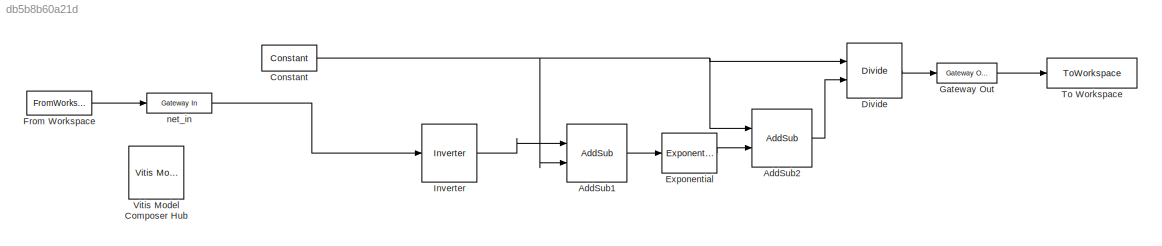
MODEL slx_db5b8b60a21d
KIND model
CONFIG AbsTol = auto
CONFIG EnableMultiTasking = off
CONFIG FixedStep = auto
CONFIG MaxStep = auto
CONFIG MinStep = auto
CONFIG RelTol = 1e-3
CONFIG SampleTimeConstraint = Unconstrained
CONFIG SolverName = VariableStepAuto
CONFIG StartTime = 0.0
CONFIG StopTime = 10.0
BLOCK [Reference] AddSub1  REF=hdlBasic/AddSub
  Ports = [2, 1]
  SourceBlock = hdlBasic/AddSub
  SourceType = Adder/Subtracter Block
BLOCK [Reference] AddSub2  REF=hdlBasic/AddSub
  Ports = [2, 1]
  SourceBlock = hdlBasic/AddSub
  SourceType = Adder/Subtracter Block
BLOCK [Reference] Constant  REF=hdlBasic/Constant
  Ports = [0, 1]
  SourceBlock = hdlBasic/Constant
  SourceType = Constant Block Block
BLOCK [Reference] Divide  REF=hdlBasic/Divide
  Ports = [2, 1]
  SourceBlock = hdlBasic/Divide
  SourceType = Divider Block
BLOCK [Reference] Exponential  REF=hdlBasic/Exponential
  Ports = [1, 1]
  SourceBlock = hdlBasic/Exponential
  SourceType = Exponential Block
BLOCK [FromWorkspace] From Workspace
  VariableName = net_in
BLOCK [Reference] Gateway Out  REF=hdlBasic/Gateway Out
  Ports = [1, 1]
  SourceBlock = hdlBasic/Gateway Out
  SourceType = Gateway Out Block
BLOCK [Reference] Inverter  REF=hdlBasic/Inverter
  Ports = [1, 1]
  SourceBlock = hdlBasic/Inverter
  SourceType = Inverter Block
BLOCK [ToWorkspace] To Workspace
  FixptAsFi = on
  MaxDataPoints = inf
  Ports = [1]
  SampleTime = -1
  SaveFormat = Timeseries
  VariableName = act_out
BLOCK [Reference] Vitis Model Composer Hub  REF=vmcUtilities/Vitis Model Composer Hub
  Ports = []
  SourceBlock = vmcUtilities/Vitis Model Composer Hub
  SourceType = VMC Hub
  Tag = genX
  UserDataPersistent = on
BLOCK [Reference] net_in  REF=hdlBasic/Gateway In
  Ports = [1, 1]
  SourceBlock = hdlBasic/Gateway In
  SourceType = Gateway In Block
LINE AddSub1:1 -> Exponential:1
LINE AddSub2:1 -> Divide:2
NET Constant:1 -> AddSub1:2, AddSub2:1, Divide:1
LINE Divide:1 -> Gateway Out:1
LINE Exponential:1 -> AddSub2:2
LINE From Workspace:1 -> net_in:1
LINE Gateway Out:1 -> To Workspace:1
LINE Inverter:1 -> AddSub1:1
LINE net_in:1 -> Inverter:1
note: NET lines group one-source signal fan-out (src -> all destinations, sorted); 1:1 wires keep LINE
